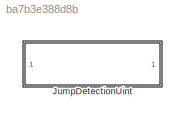
MODEL slx_ba7b3e388d8b
KIND library
CONFIG AbsTol = auto
CONFIG EnableMultiTasking = off
CONFIG FixedStep = auto
CONFIG MaxStep = auto
CONFIG MinStep = auto
CONFIG RelTol = 1e-3
CONFIG SampleTimeConstraint = Unconstrained
CONFIG SolverName = VariableStepAuto
CONFIG StartTime = 0.0
CONFIG StopTime = 10.0
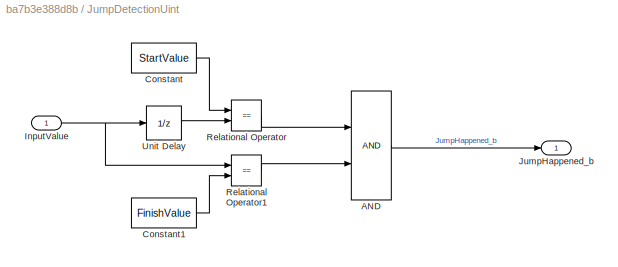
BLOCK [SubSystem] JumpDetectionUint
  Ports = [1, 1]
  RequestExecContextInheritance = off
BLOCK [Logic] JumpDetectionUint/AND
  AllPortsSameDT = off
  OutDataTypeStr = boolean
  Ports = [2, 1]
BLOCK [Constant] JumpDetectionUint/Constant
  OutDataTypeStr = uint8
  Value = StartValue
BLOCK [Constant] JumpDetectionUint/Constant1
  OutDataTypeStr = uint8
  Value = FinishValue
BLOCK [Inport] JumpDetectionUint/InputValue
  OutDataTypeStr = uint8
BLOCK [Outport] JumpDetectionUint/JumpHappened_b
BLOCK [RelationalOperator] JumpDetectionUint/Relational Operator
  InputSameDT = off
  Operator = ==
  OutDataTypeStr = boolean
  Ports = [2, 1]
  RndMeth = Simplest
BLOCK [RelationalOperator] JumpDetectionUint/Relational Operator1
  InputSameDT = off
  Operator = ==
  OutDataTypeStr = boolean
  Ports = [2, 1]
  RndMeth = Simplest
BLOCK [UnitDelay] JumpDetectionUint/Unit Delay
  HasFrameUpgradeWarning = on
  SampleTime = -1
LINE JumpDetectionUint/AND:1 -> JumpDetectionUint/JumpHappened_b:1
LINE JumpDetectionUint/Constant1:1 -> JumpDetectionUint/Relational Operator1:2
LINE JumpDetectionUint/Constant:1 -> JumpDetectionUint/Relational Operator:1
NET JumpDetectionUint/InputValue:1 -> JumpDetectionUint/Relational Operator1:1, JumpDetectionUint/Unit Delay:1
LINE JumpDetectionUint/Relational Operator1:1 -> JumpDetectionUint/AND:2
LINE JumpDetectionUint/Relational Operator:1 -> JumpDetectionUint/AND:1
LINE JumpDetectionUint/Unit Delay:1 -> JumpDetectionUint/Relational Operator:2
note: NET lines group one-source signal fan-out (src -> all destinations, sorted); 1:1 wires keep LINE
